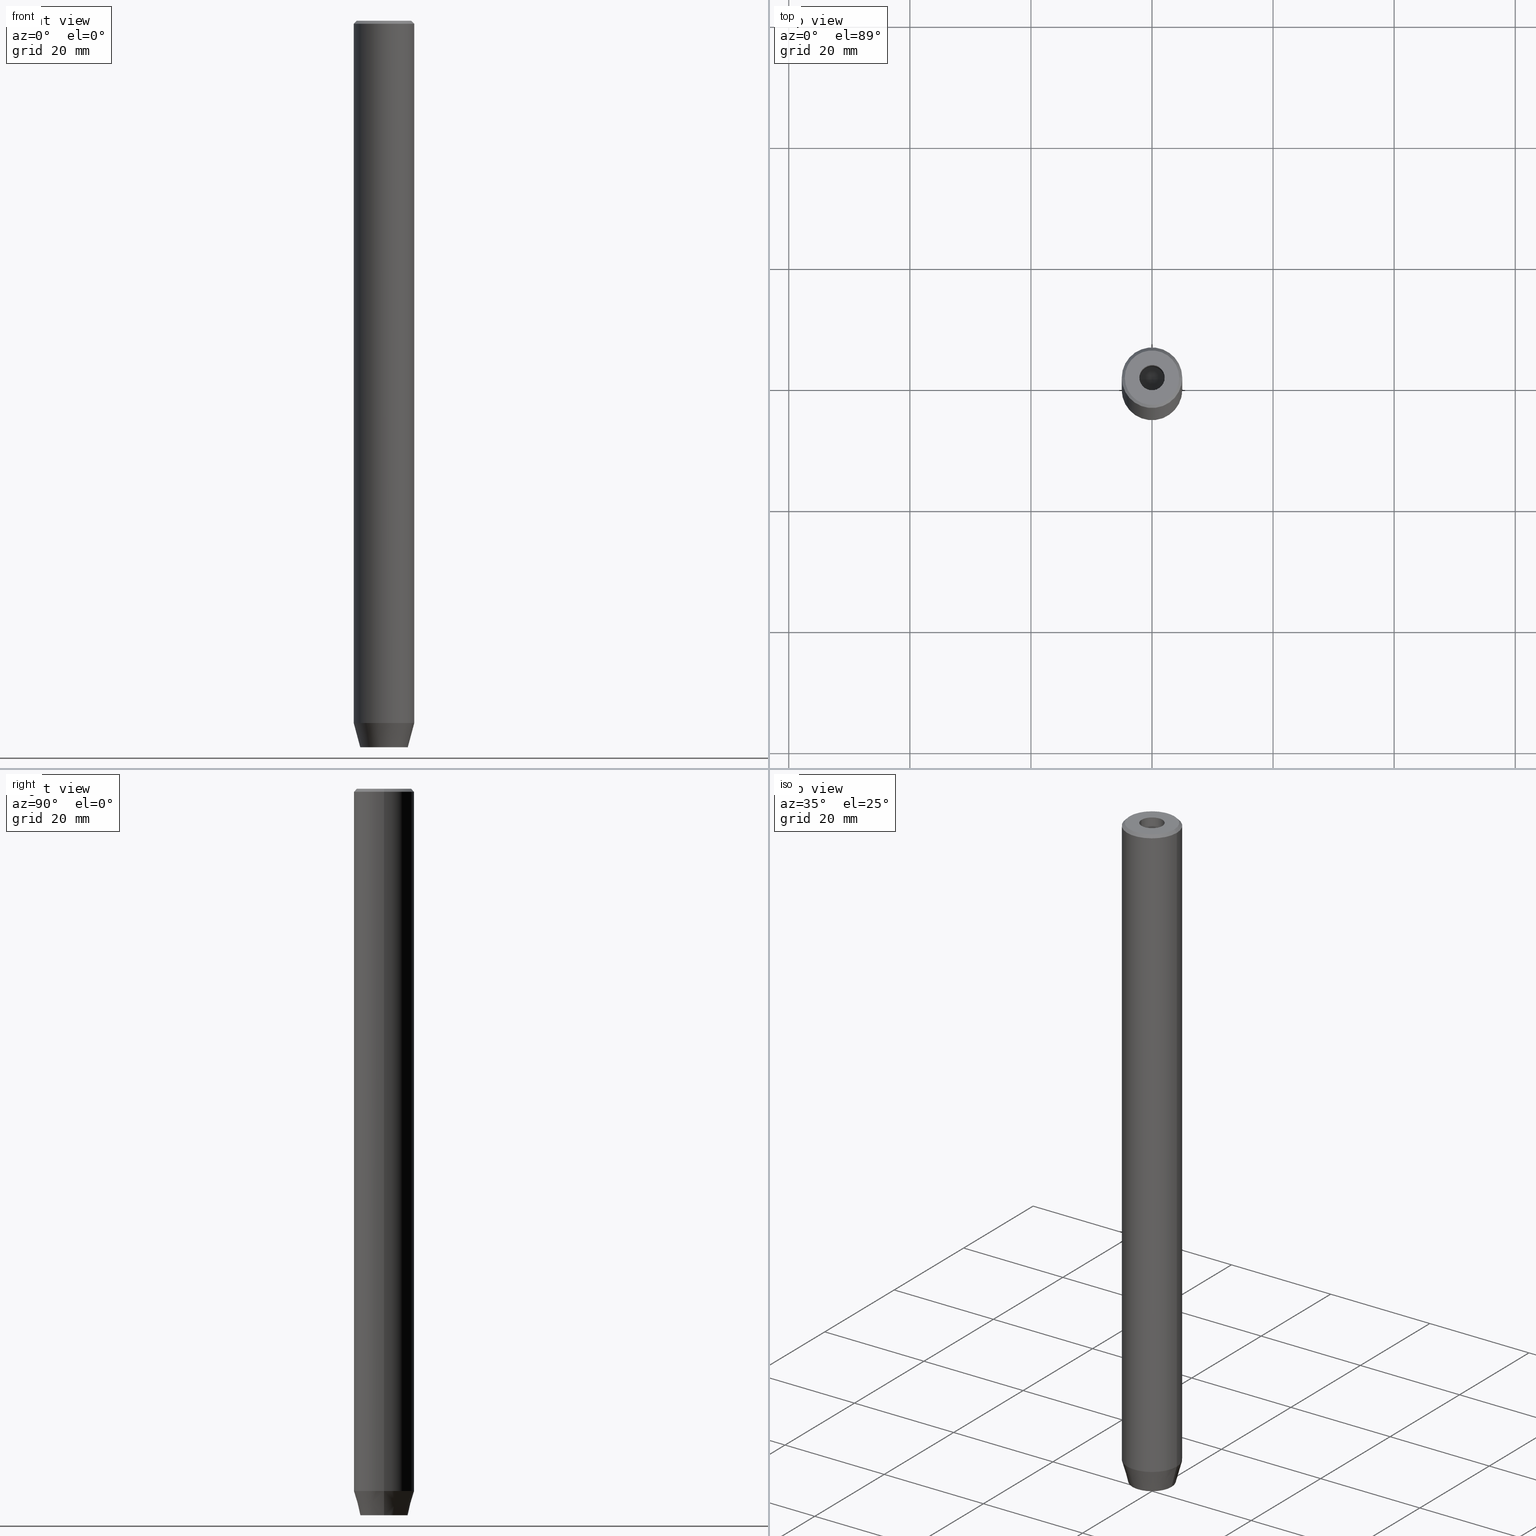
[diagram: canonical four-view strip — front | top / right | iso, engineering-drawing reading convention]
A machine part, canonical four-view strip (front | top / right | iso — engineering-drawing reading convention). The complete STEP part file that produces these views, byte-faithful:
ISO-10303-21;
HEADER;
FILE_DESCRIPTION (( 'STEP AP203' ),
    '1' );
FILE_NAME ('803f.STEP',
    '2024-01-02T21:57:26',
    ( '' ),
    ( '' ),
    'SwSTEP 2.0',
    'SolidWorks 2019',
    '' );
FILE_SCHEMA (( 'CONFIG_CONTROL_DESIGN' ));
ENDSEC;

DATA;
#1 = VERTEX_POINT ( 'NONE', #142 ) ;
#2 = CARTESIAN_POINT ( 'NONE',  ( -1.999999999999997780, 1.154700538379253238, -120.0000000000000000 ) ) ;
#3 = ORIENTED_EDGE ( 'NONE', *, *, #38, .T. ) ;
#4 = ADVANCED_FACE ( 'NONE', ( #320 ), #97, .F. ) ;
#5 = DIRECTION ( 'NONE',  ( -1.000000000000000000, 0.000000000000000000, -0.000000000000000000 ) ) ;
#6 = ORIENTED_EDGE ( 'NONE', *, *, #323, .F. ) ;
#7 = APPROVAL_ROLE ( '' ) ;
#8 = AXIS2_PLACEMENT_3D ( 'NONE', #424, #153, #566 ) ;
#9 = ORIENTED_EDGE ( 'NONE', *, *, #535, .T. ) ;
#10 = CARTESIAN_POINT ( 'NONE',  ( -1.000000000000000222, -1.732050807568877637, -120.0000000000000000 ) ) ;
#11 = ORGANIZATION ( 'NEUR�EN�', 'NEUR�EN�', '' ) ;
#12 = ORIENTED_EDGE ( 'NONE', *, *, #447, .T. ) ;
#13 = COORDINATED_UNIVERSAL_TIME_OFFSET ( 1, 0, .AHEAD. ) ;
#14 = ORIENTED_EDGE ( 'NONE', *, *, #558, .F. ) ;
#15 = EDGE_CURVE ( 'NONE', #263, #1, #193, .T. ) ;
#16 = ORIENTED_EDGE ( 'NONE', *, *, #439, .T. ) ;
#17 = DIRECTION ( 'NONE',  ( 1.000000000000000000, 0.000000000000000000, 0.000000000000000000 ) ) ;
#18 = DIRECTION ( 'NONE',  ( -1.000000000000000000, 5.633679745264339711E-16, 0.000000000000000000 ) ) ;
#19 = LINE ( 'NONE', #196, #288 ) ;
#20 = ORIENTED_EDGE ( 'NONE', *, *, #535, .F. ) ;
#21 = CIRCLE ( 'NONE', #394, 5.000000000000000000 ) ;
#22 = CARTESIAN_POINT ( 'NONE',  ( -1.999999999999998224, 1.126735949052866956E-15, -120.0000000000000000 ) ) ;
#23 = VERTEX_POINT ( 'NONE', #554 ) ;
#24 = LINE ( 'NONE', #157, #86 ) ;
#25 = ADVANCED_FACE ( 'NONE', ( #132 ), #311, .F. ) ;
#26 = DIRECTION ( 'NONE',  ( 1.000000000000000000, 0.000000000000000000, 0.000000000000000000 ) ) ;
#27 = VECTOR ( 'NONE', #395, 1000.000000000000000 ) ;
#28 = APPROVAL_PERSON_ORGANIZATION ( #357, #105, #7 ) ;
#29 = DIRECTION ( 'NONE',  ( -0.8660254037844387076, 0.5000000000000001110, 0.000000000000000000 ) ) ;
#30 = CARTESIAN_POINT ( 'NONE',  ( -1.000000000000000222, -1.732050807568877637, -117.2000000000000028 ) ) ;
#31 = DIRECTION ( 'NONE',  ( -0.000000000000000000, -0.000000000000000000, 1.000000000000000000 ) ) ;
#32 = ORIENTED_EDGE ( 'NONE', *, *, #574, .T. ) ;
#33 = EDGE_CURVE ( 'NONE', #1, #547, #409, .T. ) ;
#34 = DIRECTION ( 'NONE',  ( 0.000000000000000000, 0.000000000000000000, -1.000000000000000000 ) ) ;
#35 = VERTEX_POINT ( 'NONE', #494 ) ;
#36 = DIRECTION ( 'NONE',  ( -0.000000000000000000, -0.000000000000000000, -1.000000000000000000 ) ) ;
#37 = CYLINDRICAL_SURFACE ( 'NONE', #576, 2.099999999999997868 ) ;
#38 = EDGE_CURVE ( 'NONE', #201, #547, #530, .T. ) ;
#39 = DIRECTION ( 'NONE',  ( -0.000000000000000000, -0.000000000000000000, 1.000000000000000000 ) ) ;
#40 = CARTESIAN_POINT ( 'NONE',  ( 2.000000000000000888, 0.000000000000000000, -117.2000000000000028 ) ) ;
#41 = DIRECTION ( 'NONE',  ( -0.000000000000000000, -0.000000000000000000, -1.000000000000000000 ) ) ;
#42 = EDGE_LOOP ( 'NONE', ( #317, #228, #353, #6 ) ) ;
#43 = DIRECTION ( 'NONE',  ( 0.000000000000000000, 0.000000000000000000, -1.000000000000000000 ) ) ;
#44 = AXIS2_PLACEMENT_3D ( 'NONE', #525, #162, #337 ) ;
#45 = DIRECTION ( 'NONE',  ( 0.4999999999999996669, -0.8660254037844388186, 0.000000000000000000 ) ) ;
#46 = VECTOR ( 'NONE', #349, 1000.000000000000000 ) ;
#47 = DIRECTION ( 'NONE',  ( 0.000000000000000000, -0.000000000000000000, 1.000000000000000000 ) ) ;
#48 = DATE_TIME_ROLE ( 'creation_date' ) ;
#49 = VERTEX_POINT ( 'NONE', #2 ) ;
#50 = APPLICATION_CONTEXT ( 'configuration controlled 3d designs of mechanical parts and assemblies' ) ;
#51 = CC_DESIGN_PERSON_AND_ORGANIZATION_ASSIGNMENT ( #461, #64, ( #93 ) ) ;
#52 = CARTESIAN_POINT ( 'NONE',  ( 0.000000000000000000, 2.309401076758503812, -117.2000000000000028 ) ) ;
#53 = CALENDAR_DATE ( 2024, 2, 1 ) ;
#54 = FACE_OUTER_BOUND ( 'NONE', #198, .T. ) ;
#55 = DIRECTION ( 'NONE',  ( -0.000000000000000000, -0.000000000000000000, 1.000000000000000000 ) ) ;
#56 = COORDINATED_UNIVERSAL_TIME_OFFSET ( 1, 0, .AHEAD. ) ;
#57 = VECTOR ( 'NONE', #41, 1000.000000000000000 ) ;
#58 = CONICAL_SURFACE ( 'NONE', #175, 4.499999999999990230, 0.7853981633974447263 ) ;
#59 = MECHANICAL_CONTEXT ( 'NONE', #149, 'mechanical' ) ;
#60 = CC_DESIGN_APPROVAL ( #354, ( #298 ) ) ;
#61 = CARTESIAN_POINT ( 'NONE',  ( 2.099999999999997868, 0.000000000000000000, 0.000000000000000000 ) ) ;
#62 = EDGE_CURVE ( 'NONE', #35, #98, #249, .T. ) ;
#63 = ORIENTED_EDGE ( 'NONE', *, *, #291, .F. ) ;
#64 = PERSON_AND_ORGANIZATION_ROLE ( 'design_owner' ) ;
#65 = LINE ( 'NONE', #464, #371 ) ;
#66 = APPROVAL_DATE_TIME ( #103, #105 ) ;
#67 = CARTESIAN_POINT ( 'NONE',  ( 0.000000000000000000, 0.000000000000000000, 0.000000000000000000 ) ) ;
#68 = LINE ( 'NONE', #374, #486 ) ;
#69 = CIRCLE ( 'NONE', #214, 2.099999999999996980 ) ;
#70 = ORIENTED_EDGE ( 'NONE', *, *, #272, .T. ) ;
#71 = EDGE_CURVE ( 'NONE', #147, #411, #65, .T. ) ;
#72 = CYLINDRICAL_SURFACE ( 'NONE', #8, 5.000000000000000000 ) ;
#73 = APPROVAL_DATE_TIME ( #243, #354 ) ;
#74 = DIRECTION ( 'NONE',  ( -0.8660254037844388186, -0.4999999999999996114, 0.000000000000000000 ) ) ;
#75 = FACE_OUTER_BOUND ( 'NONE', #577, .T. ) ;
#76 = ORIENTED_EDGE ( 'NONE', *, *, #131, .F. ) ;
#77 = DIRECTION ( 'NONE',  ( -0.000000000000000000, -0.000000000000000000, 1.000000000000000000 ) ) ;
#78 = ADVANCED_FACE ( 'NONE', ( #507 ), #222, .T. ) ;
#79 = DIRECTION ( 'NONE',  ( 1.000000000000000000, 0.000000000000000000, -0.000000000000000000 ) ) ;
#80 = APPROVAL ( #237, 'NEUR�EN�' ) ;
#81 = EDGE_LOOP ( 'NONE', ( #498, #116, #90 ) ) ;
#82 = CC_DESIGN_PERSON_AND_ORGANIZATION_ASSIGNMENT ( #279, #497, ( #458 ) ) ;
#83 = LINE ( 'NONE', #216, #532 ) ;
#84 = LINE ( 'NONE', #488, #505 ) ;
#85 = CARTESIAN_POINT ( 'NONE',  ( 0.000000000000000000, 0.000000000000000000, 0.000000000000000000 ) ) ;
#86 = VECTOR ( 'NONE', #333, 1000.000000000000000 ) ;
#87 = VECTOR ( 'NONE', #327, 1000.000000000000000 ) ;
#88 = CARTESIAN_POINT ( 'NONE',  ( -1.999999999999998224, 1.126735949052866956E-15, -117.2000000000000028 ) ) ;
#89 = ORIENTED_EDGE ( 'NONE', *, *, #187, .T. ) ;
#90 = ORIENTED_EDGE ( 'NONE', *, *, #509, .T. ) ;
#91 = ADVANCED_FACE ( 'NONE', ( #75 ), #417, .T. ) ;
#92 = DIRECTION ( 'NONE',  ( 0.8660254037844388186, 0.4999999999999996669, 0.000000000000000000 ) ) ;
#93 = PRODUCT ( '803f', '803f', '', ( #59 ) ) ;
#94 = SECURITY_CLASSIFICATION_LEVEL ( 'unclassified' ) ;
#95 = CARTESIAN_POINT ( 'NONE',  ( -2.099999999999998757, 2.571758278209439985E-16, -1.990051048614449116E-16 ) ) ;
#96 = LINE ( 'NONE', #351, #568 ) ;
#97 = CYLINDRICAL_SURFACE ( 'NONE', #393, 2.099999999999997868 ) ;
#98 = VERTEX_POINT ( 'NONE', #421 ) ;
#99 = DIRECTION ( 'NONE',  ( 0.000000000000000000, 0.000000000000000000, -1.000000000000000000 ) ) ;
#100 = EDGE_CURVE ( 'NONE', #98, #345, #19, .T. ) ;
#101 = CARTESIAN_POINT ( 'NONE',  ( 0.000000000000000000, 0.000000000000000000, -117.2000000000000028 ) ) ;
#102 = EDGE_LOOP ( 'NONE', ( #89, #350, #179, #514 ) ) ;
#103 = DATE_AND_TIME ( #234, #295 ) ;
#104 = AXIS2_PLACEMENT_3D ( 'NONE', #167, #340, #343 ) ;
#105 = APPROVAL ( #504, 'NEUR�EN�' ) ;
#106 = EDGE_LOOP ( 'NONE', ( #309, #76, #14, #567, #280, #414 ) ) ;
#107 = PLANE ( 'NONE',  #268 ) ;
#108 = EDGE_CURVE ( 'NONE', #147, #496, #386, .T. ) ;
#109 = AXIS2_PLACEMENT_3D ( 'NONE', #258, #31, #581 ) ;
#110 = DIRECTION ( 'NONE',  ( -0.000000000000000000, -0.000000000000000000, 1.000000000000000000 ) ) ;
#111 = APPROVAL_STATUS ( 'not_yet_approved' ) ;
#112 = PERSON_AND_ORGANIZATION_ROLE ( 'creator' ) ;
#113 = ADVANCED_FACE ( 'NONE', ( #469 ), #72, .T. ) ;
#114 = CARTESIAN_POINT ( 'NONE',  ( -1.999999999999998668, -1.154700538379252572, -117.2000000000000028 ) ) ;
#115 = PLANE ( 'NONE',  #522 ) ;
#116 = ORIENTED_EDGE ( 'NONE', *, *, #238, .T. ) ;
#117 = AXIS2_PLACEMENT_3D ( 'NONE', #396, #587, #451 ) ;
#118 = AXIS2_PLACEMENT_3D ( 'NONE', #385, #346, #301 ) ;
#119 = FACE_BOUND ( 'NONE', #106, .T. ) ;
#120 = EDGE_LOOP ( 'NONE', ( #466, #520, #274, #158 ) ) ;
#121 = DIRECTION ( 'NONE',  ( -0.000000000000000000, 0.000000000000000000, -1.000000000000000000 ) ) ;
#122 = CARTESIAN_POINT ( 'NONE',  ( -5.000000000000000000, 6.123233995736766282E-16, -0.5000000000000135447 ) ) ;
#123 = CARTESIAN_POINT ( 'NONE',  ( 2.000000000000000888, 1.154700538379251462, -117.2000000000000028 ) ) ;
#124 = EDGE_CURVE ( 'NONE', #422, #136, #287, .T. ) ;
#125 = FACE_OUTER_BOUND ( 'NONE', #415, .T. ) ;
#126 = AXIS2_PLACEMENT_3D ( 'NONE', #355, #135, #540 ) ;
#127 = LINE ( 'NONE', #52, #557 ) ;
#128 = ORIENTED_EDGE ( 'NONE', *, *, #366, .T. ) ;
#129 =( LENGTH_UNIT ( ) NAMED_UNIT ( * ) SI_UNIT ( .MILLI., .METRE. ) );
#130 = FACE_BOUND ( 'NONE', #468, .T. ) ;
#131 = EDGE_CURVE ( 'NONE', #170, #49, #248, .T. ) ;
#132 = FACE_OUTER_BOUND ( 'NONE', #362, .T. ) ;
#133 = AXIS2_PLACEMENT_3D ( 'NONE', #171, #435, #307 ) ;
#134 = PERSON_AND_ORGANIZATION ( #299, #11 ) ;
#135 = DIRECTION ( 'NONE',  ( -0.000000000000000000, -0.000000000000000000, 1.000000000000000000 ) ) ;
#136 = VERTEX_POINT ( 'NONE', #329 ) ;
#137 = DATE_AND_TIME ( #402, #506 ) ;
#138 = EDGE_CURVE ( 'NONE', #411, #161, #303, .T. ) ;
#139 = ORIENTED_EDGE ( 'NONE', *, *, #366, .F. ) ;
#140 = DIRECTION ( 'NONE',  ( -0.000000000000000000, -0.000000000000000000, 1.000000000000000000 ) ) ;
#141 = LINE ( 'NONE', #459, #294 ) ;
#142 = CARTESIAN_POINT ( 'NONE',  ( -2.099999999999996980, 2.571758278209438013E-16, -15.00000000000000000 ) ) ;
#143 = DATE_AND_TIME ( #251, #406 ) ;
#144 = AXIS2_PLACEMENT_3D ( 'NONE', #455, #45, #92 ) ;
#145 = PERSON_AND_ORGANIZATION ( #299, #11 ) ;
#146 = VECTOR ( 'NONE', #573, 1000.000000000000000 ) ;
#147 = VERTEX_POINT ( 'NONE', #302 ) ;
#148 = LINE ( 'NONE', #10, #534 ) ;
#149 = APPLICATION_CONTEXT ( 'configuration controlled 3d designs of mechanical parts and assemblies' ) ;
#150 = DIRECTION ( 'NONE',  ( 0.2588190451025210725, 0.000000000000000000, 0.9659258262890680902 ) ) ;
#151 = ORIENTED_EDGE ( 'NONE', *, *, #177, .F. ) ;
#152 = EDGE_CURVE ( 'NONE', #543, #256, #84, .T. ) ;
#153 = DIRECTION ( 'NONE',  ( -0.000000000000000000, -0.000000000000000000, 1.000000000000000000 ) ) ;
#154 = ORIENTED_EDGE ( 'NONE', *, *, #38, .F. ) ;
#155 = EDGE_LOOP ( 'NONE', ( #210, #185, #551 ) ) ;
#156 = AXIS2_PLACEMENT_3D ( 'NONE', #192, #463, #553 ) ;
#157 = CARTESIAN_POINT ( 'NONE',  ( -1.999999999999997780, 1.154700538379253238, -117.2000000000000028 ) ) ;
#158 = ORIENTED_EDGE ( 'NONE', *, *, #439, .F. ) ;
#159 = EDGE_CURVE ( 'NONE', #136, #254, #441, .T. ) ;
#160 = CARTESIAN_POINT ( 'NONE',  ( 2.000000000000000888, -1.154700538379252572, -117.2000000000000028 ) ) ;
#161 = VERTEX_POINT ( 'NONE', #122 ) ;
#162 = DIRECTION ( 'NONE',  ( -0.000000000000000000, -0.000000000000000000, 1.000000000000000000 ) ) ;
#163 = FACE_OUTER_BOUND ( 'NONE', #384, .T. ) ;
#164 = CALENDAR_DATE ( 2024, 2, 1 ) ;
#165 = PLANE ( 'NONE',  #133 ) ;
#166 = ORIENTED_EDGE ( 'NONE', *, *, #526, .T. ) ;
#167 = CARTESIAN_POINT ( 'NONE',  ( 0.000000000000000000, 0.000000000000000000, 0.000000000000000000 ) ) ;
#168 = DIRECTION ( 'NONE',  ( 1.000000000000000000, 0.000000000000000000, 0.000000000000000000 ) ) ;
#169 = ADVANCED_FACE ( 'NONE', ( #163 ), #115, .F. ) ;
#170 = VERTEX_POINT ( 'NONE', #433 ) ;
#171 = CARTESIAN_POINT ( 'NONE',  ( 1.000000000000000444, 1.732050807568877637, -117.2000000000000028 ) ) ;
#172 = DIRECTION ( 'NONE',  ( 1.000000000000000000, 0.000000000000000000, 0.000000000000000000 ) ) ;
#173 = ORIENTED_EDGE ( 'NONE', *, *, #509, .F. ) ;
#174 = AXIS2_PLACEMENT_3D ( 'NONE', #510, #244, #26 ) ;
#175 = AXIS2_PLACEMENT_3D ( 'NONE', #67, #99, #367 ) ;
#176 = CARTESIAN_POINT ( 'NONE',  ( 0.000000000000000000, 0.000000000000000000, 0.000000000000000000 ) ) ;
#177 = EDGE_CURVE ( 'NONE', #547, #201, #324, .T. ) ;
#178 = CARTESIAN_POINT ( 'NONE',  ( -3.982994051648894933E-15, 0.000000000000000000, -16.26180729995787644 ) ) ;
#179 = ORIENTED_EDGE ( 'NONE', *, *, #336, .F. ) ;
#180 = FACE_OUTER_BOUND ( 'NONE', #397, .T. ) ;
#181 = ORIENTED_EDGE ( 'NONE', *, *, #501, .F. ) ;
#182 = CARTESIAN_POINT ( 'NONE',  ( 2.168404344971008868E-16, -2.309401076758503812, -120.0000000000000000 ) ) ;
#183 = VECTOR ( 'NONE', #428, 1000.000000000000000 ) ;
#184 = ORIENTED_EDGE ( 'NONE', *, *, #305, .T. ) ;
#185 = ORIENTED_EDGE ( 'NONE', *, *, #15, .T. ) ;
#186 = CARTESIAN_POINT ( 'NONE',  ( 0.000000000000000000, 2.309401076758503812, -117.2000000000000028 ) ) ;
#187 = EDGE_CURVE ( 'NONE', #98, #35, #359, .T. ) ;
#188 = ORIENTED_EDGE ( 'NONE', *, *, #62, .F. ) ;
#189 = PERSON_AND_ORGANIZATION_ROLE ( 'classification_officer' ) ;
#190 = ORIENTED_EDGE ( 'NONE', *, *, #501, .T. ) ;
#191 = DIRECTION ( 'NONE',  ( 1.000000000000000000, 0.000000000000000000, 0.000000000000000000 ) ) ;
#192 = CARTESIAN_POINT ( 'NONE',  ( 0.000000000000000000, 0.000000000000000000, -15.00000000000000000 ) ) ;
#193 = LINE ( 'NONE', #503, #205 ) ;
#194 = ORIENTED_EDGE ( 'NONE', *, *, #131, .T. ) ;
#195 = DIRECTION ( 'NONE',  ( 1.000000000000000000, 0.000000000000000000, 0.000000000000000000 ) ) ;
#196 = CARTESIAN_POINT ( 'NONE',  ( 5.000000000000000000, 0.000000000000000000, -115.9999999999999858 ) ) ;
#197 = AXIS2_PLACEMENT_3D ( 'NONE', #563, #110, #559 ) ;
#198 = EDGE_LOOP ( 'NONE', ( #194, #63, #20, #32 ) ) ;
#199 = CARTESIAN_POINT ( 'NONE',  ( -4.499999999999990230, 0.000000000000000000, 0.000000000000000000 ) ) ;
#200 = ADVANCED_FACE ( 'NONE', ( #344 ), #475, .F. ) ;
#201 = VERTEX_POINT ( 'NONE', #531 ) ;
#202 = ORIENTED_EDGE ( 'NONE', *, *, #138, .T. ) ;
#203 = DIRECTION ( 'NONE',  ( 0.7071067811865450192, 8.659560562354902043E-17, -0.7071067811865500152 ) ) ;
#204 = EDGE_CURVE ( 'NONE', #579, #543, #127, .T. ) ;
#205 = VECTOR ( 'NONE', #278, 1000.000000000000000 ) ;
#206 = VECTOR ( 'NONE', #77, 1000.000000000000000 ) ;
#207 = APPROVAL_PERSON_ORGANIZATION ( #410, #80, #227 ) ;
#208 = CARTESIAN_POINT ( 'NONE',  ( -5.000000000000000000, 6.123233995736766282E-16, 0.000000000000000000 ) ) ;
#209 = CC_DESIGN_PERSON_AND_ORGANIZATION_ASSIGNMENT ( #431, #112, ( #298 ) ) ;
#210 = ORIENTED_EDGE ( 'NONE', *, *, #238, .F. ) ;
#211 = CARTESIAN_POINT ( 'NONE',  ( -4.499999999999990230, 0.000000000000000000, 0.000000000000000000 ) ) ;
#212 = DIRECTION ( 'NONE',  ( -0.8660254037844385966, -0.5000000000000001110, 0.000000000000000000 ) ) ;
#213 = DIRECTION ( 'NONE',  ( -0.000000000000000000, -0.000000000000000000, 1.000000000000000000 ) ) ;
#214 = AXIS2_PLACEMENT_3D ( 'NONE', #219, #500, #195 ) ;
#215 = ADVANCED_FACE ( 'NONE', ( #130, #316 ), #502, .T. ) ;
#216 = CARTESIAN_POINT ( 'NONE',  ( 2.000000000000000888, 0.000000000000000000, -120.0000000000000000 ) ) ;
#217 = CARTESIAN_POINT ( 'NONE',  ( 0.000000000000000000, 0.000000000000000000, 0.000000000000000000 ) ) ;
#218 = DIRECTION ( 'NONE',  ( -0.000000000000000000, -0.000000000000000000, 1.000000000000000000 ) ) ;
#219 = CARTESIAN_POINT ( 'NONE',  ( 0.000000000000000000, 0.000000000000000000, -15.00000000000000000 ) ) ;
#220 = CARTESIAN_POINT ( 'NONE',  ( 2.168404344971008868E-16, -2.309401076758503812, -117.2000000000000028 ) ) ;
#221 = ADVANCED_FACE ( 'NONE', ( #399 ), #361, .T. ) ;
#222 = CONICAL_SURFACE ( 'NONE', #449, 5.000000000000000000, 0.2617993877991497964 ) ;
#223 = LINE ( 'NONE', #584, #27 ) ;
#224 = PRODUCT_RELATED_PRODUCT_CATEGORY ( 'detail', '', ( #93 ) ) ;
#225 = DATE_AND_TIME ( #53, #387 ) ;
#226 = ORIENTED_EDGE ( 'NONE', *, *, #257, .T. ) ;
#227 = APPROVAL_ROLE ( '' ) ;
#228 = ORIENTED_EDGE ( 'NONE', *, *, #398, .T. ) ;
#229 = CARTESIAN_POINT ( 'NONE',  ( 0.000000000000000000, 0.000000000000000000, 0.000000000000000000 ) ) ;
#230 = CLOSED_SHELL ( 'NONE', ( #491, #314, #546, #78, #113, #470, #215, #91, #265, #483, #169, #282, #331, #25, #382, #376, #221, #200, #4 ) ) ;
#231 = CARTESIAN_POINT ( 'NONE',  ( 2.000000000000000888, 1.154700538379251462, -120.0000000000000000 ) ) ;
#232 = CIRCLE ( 'NONE', #306, 5.000000000000000000 ) ;
#233 = DIRECTION ( 'NONE',  ( -0.000000000000000000, -0.000000000000000000, 1.000000000000000000 ) ) ;
#234 = CALENDAR_DATE ( 2024, 2, 1 ) ;
#235 = APPLICATION_PROTOCOL_DEFINITION ( 'international standard', 'config_control_design', 1994, #50 ) ;
#236 = DIRECTION ( 'NONE',  ( 1.000000000000000000, 0.000000000000000000, 0.000000000000000000 ) ) ;
#237 = APPROVAL_STATUS ( 'not_yet_approved' ) ;
#238 = EDGE_CURVE ( 'NONE', #263, #239, #141, .T. ) ;
#239 = VERTEX_POINT ( 'NONE', #493 ) ;
#240 = LINE ( 'NONE', #412, #46 ) ;
#241 = AXIS2_PLACEMENT_3D ( 'NONE', #85, #34, #575 ) ;
#242 = VERTEX_POINT ( 'NONE', #492 ) ;
#243 = DATE_AND_TIME ( #164, #260 ) ;
#244 = DIRECTION ( 'NONE',  ( -0.000000000000000000, -0.000000000000000000, 1.000000000000000000 ) ) ;
#245 = EDGE_CURVE ( 'NONE', #239, #201, #454, .T. ) ;
#246 = CARTESIAN_POINT ( 'NONE',  ( 0.9999999999999997780, -1.732050807568878747, -117.2000000000000028 ) ) ;
#247 = ORIENTED_EDGE ( 'NONE', *, *, #558, .T. ) ;
#248 = LINE ( 'NONE', #22, #183 ) ;
#249 = CIRCLE ( 'NONE', #555, 3.928203230275506996 ) ;
#250 = AXIS2_PLACEMENT_3D ( 'NONE', #479, #39, #482 ) ;
#251 = CALENDAR_DATE ( 2024, 2, 1 ) ;
#252 = CARTESIAN_POINT ( 'NONE',  ( 2.000000000000000888, 1.154700538379251462, -117.2000000000000028 ) ) ;
#253 = DIRECTION ( 'NONE',  ( -0.5000000000000001110, 0.8660254037844385966, 0.000000000000000000 ) ) ;
#254 = VERTEX_POINT ( 'NONE', #182 ) ;
#255 = PLANE ( 'NONE',  #118 ) ;
#256 = VERTEX_POINT ( 'NONE', #231 ) ;
#257 = EDGE_CURVE ( 'NONE', #283, #579, #223, .T. ) ;
#258 = CARTESIAN_POINT ( 'NONE',  ( 0.000000000000000000, 0.000000000000000000, -120.0000000000000000 ) ) ;
#259 = CONICAL_SURFACE ( 'NONE', #126, 5.000000000000000000, 0.2617993877991497964 ) ;
#260 = LOCAL_TIME ( 22, 57, 26.00000000000000000, #565 ) ;
#261 = LINE ( 'NONE', #123, #146 ) ;
#262 = CARTESIAN_POINT ( 'NONE',  ( 0.000000000000000000, 0.000000000000000000, -15.00000000000000000 ) ) ;
#263 = VERTEX_POINT ( 'NONE', #178 ) ;
#264 = CARTESIAN_POINT ( 'NONE',  ( 0.000000000000000000, 0.000000000000000000, -15.00000000000000000 ) ) ;
#265 = ADVANCED_FACE ( 'NONE', ( #180 ), #259, .T. ) ;
#266 = ORIENTED_EDGE ( 'NONE', *, *, #159, .T. ) ;
#267 = CC_DESIGN_PERSON_AND_ORGANIZATION_ASSIGNMENT ( #145, #318, ( #458 ) ) ;
#268 = AXIS2_PLACEMENT_3D ( 'NONE', #286, #437, #293 ) ;
#269 = DIRECTION ( 'NONE',  ( -0.000000000000000000, -0.000000000000000000, 1.000000000000000000 ) ) ;
#270 = ORIENTED_EDGE ( 'NONE', *, *, #398, .F. ) ;
#271 = APPROVAL_DATE_TIME ( #137, #80 ) ;
#272 = EDGE_CURVE ( 'NONE', #579, #436, #96, .T. ) ;
#273 = ORIENTED_EDGE ( 'NONE', *, *, #429, .T. ) ;
#274 = ORIENTED_EDGE ( 'NONE', *, *, #423, .F. ) ;
#275 = DIRECTION ( 'NONE',  ( -0.8660254037844387076, 0.5000000000000001110, 0.000000000000000000 ) ) ;
#276 = AXIS2_PLACEMENT_3D ( 'NONE', #101, #43, #5 ) ;
#277 = CC_DESIGN_SECURITY_CLASSIFICATION ( #586, ( #458 ) ) ;
#278 = DIRECTION ( 'NONE',  ( -0.8571673007021113344, 1.049727191138617463E-16, 0.5150380749100558209 ) ) ;
#279 = PERSON_AND_ORGANIZATION ( #299, #11 ) ;
#280 = ORIENTED_EDGE ( 'NONE', *, *, #408, .F. ) ;
#281 = DIRECTION ( 'NONE',  ( 0.000000000000000000, 0.000000000000000000, 1.000000000000000000 ) ) ;
#282 = ADVANCED_FACE ( 'NONE', ( #54 ), #319, .F. ) ;
#283 = VERTEX_POINT ( 'NONE', #285 ) ;
#284 = LINE ( 'NONE', #322, #523 ) ;
#285 = CARTESIAN_POINT ( 'NONE',  ( -1.999999999999997780, 1.154700538379253238, -117.2000000000000028 ) ) ;
#286 = CARTESIAN_POINT ( 'NONE',  ( -1.000000000000000222, -1.732050807568877637, -117.2000000000000028 ) ) ;
#287 = LINE ( 'NONE', #246, #569 ) ;
#288 = VECTOR ( 'NONE', #150, 1000.000000000000114 ) ;
#289 = DIRECTION ( 'NONE',  ( -0.8660254037844388186, -0.4999999999999996114, 0.000000000000000000 ) ) ;
#290 = ORIENTED_EDGE ( 'NONE', *, *, #33, .F. ) ;
#291 = EDGE_CURVE ( 'NONE', #283, #49, #24, .T. ) ;
#292 = COORDINATED_UNIVERSAL_TIME_OFFSET ( 1, 0, .AHEAD. ) ;
#293 = DIRECTION ( 'NONE',  ( 0.8660254037844385966, -0.4999999999999999445, 0.000000000000000000 ) ) ;
#294 = VECTOR ( 'NONE', #310, 1000.000000000000000 ) ;
#295 = LOCAL_TIME ( 22, 57, 26.00000000000000000, #56 ) ;
#296 = CARTESIAN_POINT ( 'NONE',  ( 0.000000000000000000, 0.000000000000000000, -0.5000000000000135447 ) ) ;
#297 = DIRECTION ( 'NONE',  ( 0.8660254037844385966, -0.5000000000000001110, 0.000000000000000000 ) ) ;
#298 = PRODUCT_DEFINITION ( 'NEZN�M�', '', #458, #304 ) ;
#299 = PERSON ( 'NEUR�EN�', 'NEUR�EN�', 'NEUR�EN�', ('NEUR�EN�'), ('NEUR�EN�'), ('NEUR�EN�') ) ;
#300 = LINE ( 'NONE', #580, #419 ) ;
#301 = DIRECTION ( 'NONE',  ( -1.000000000000000000, 0.000000000000000000, -0.000000000000000000 ) ) ;
#302 = CARTESIAN_POINT ( 'NONE',  ( 4.499999999999990230, 5.817072295949921509E-16, 0.000000000000000000 ) ) ;
#303 = CIRCLE ( 'NONE', #542, 5.000000000000000000 ) ;
#304 = DESIGN_CONTEXT ( 'detailed design', #50, 'design' ) ;
#305 = EDGE_CURVE ( 'NONE', #242, #254, #517, .T. ) ;
#306 = AXIS2_PLACEMENT_3D ( 'NONE', #474, #213, #389 ) ;
#307 = DIRECTION ( 'NONE',  ( -0.8660254037844385966, 0.5000000000000001110, 0.000000000000000000 ) ) ;
#308 =( NAMED_UNIT ( * ) PLANE_ANGLE_UNIT ( ) SI_UNIT ( $, .RADIAN. ) );
#309 = ORIENTED_EDGE ( 'NONE', *, *, #526, .F. ) ;
#310 = DIRECTION ( 'NONE',  ( 0.8571673007021113344, 0.000000000000000000, 0.5150380749100558209 ) ) ;
#311 = PLANE ( 'NONE',  #144 ) ;
#312 = VECTOR ( 'NONE', #416, 1000.000000000000000 ) ;
#313 = AXIS2_PLACEMENT_3D ( 'NONE', #264, #140, #191 ) ;
#314 = ADVANCED_FACE ( 'NONE', ( #368 ), #405, .F. ) ;
#315 = ORIENTED_EDGE ( 'NONE', *, *, #124, .T. ) ;
#316 = FACE_OUTER_BOUND ( 'NONE', #401, .T. ) ;
#317 = ORIENTED_EDGE ( 'NONE', *, *, #336, .T. ) ;
#318 = PERSON_AND_ORGANIZATION_ROLE ( 'creator' ) ;
#319 = PLANE ( 'NONE',  #330 ) ;
#320 = FACE_OUTER_BOUND ( 'NONE', #508, .T. ) ;
#321 = COORDINATED_UNIVERSAL_TIME_OFFSET ( 1, 0, .AHEAD. ) ;
#322 = CARTESIAN_POINT ( 'NONE',  ( -1.000000000000000444, 1.732050807568877637, -120.0000000000000000 ) ) ;
#323 = EDGE_CURVE ( 'NONE', #345, #411, #68, .T. ) ;
#324 = CIRCLE ( 'NONE', #250, 2.099999999999998757 ) ;
#325 = ORIENTED_EDGE ( 'NONE', *, *, #408, .T. ) ;
#326 = CARTESIAN_POINT ( 'NONE',  ( -1.999999999999998224, 1.126735949052866956E-15, -117.2000000000000028 ) ) ;
#327 = DIRECTION ( 'NONE',  ( 5.633679745264339711E-16, 1.000000000000000000, 0.000000000000000000 ) ) ;
#328 = ORIENTED_EDGE ( 'NONE', *, *, #177, .T. ) ;
#329 = CARTESIAN_POINT ( 'NONE',  ( 2.168404344971008868E-16, -2.309401076758503812, -117.2000000000000028 ) ) ;
#330 = AXIS2_PLACEMENT_3D ( 'NONE', #326, #18, #413 ) ;
#331 = ADVANCED_FACE ( 'NONE', ( #511 ), #107, .F. ) ;
#332 = AXIS2_PLACEMENT_3D ( 'NONE', #229, #281, #404 ) ;
#333 = DIRECTION ( 'NONE',  ( -0.000000000000000000, -0.000000000000000000, -1.000000000000000000 ) ) ;
#334 = ORIENTED_EDGE ( 'NONE', *, *, #582, .F. ) ;
#335 = ORIENTED_EDGE ( 'NONE', *, *, #71, .F. ) ;
#336 = EDGE_CURVE ( 'NONE', #345, #23, #232, .T. ) ;
#337 = DIRECTION ( 'NONE',  ( 1.000000000000000000, 0.000000000000000000, 0.000000000000000000 ) ) ;
#338 = ORIENTED_EDGE ( 'NONE', *, *, #204, .T. ) ;
#339 = CIRCLE ( 'NONE', #44, 5.000000000000000000 ) ;
#340 = DIRECTION ( 'NONE',  ( -0.000000000000000000, -0.000000000000000000, 1.000000000000000000 ) ) ;
#341 = CC_DESIGN_DATE_AND_TIME_ASSIGNMENT ( #225, #400, ( #586 ) ) ;
#342 = DIRECTION ( 'NONE',  ( 0.000000000000000000, 0.000000000000000000, -1.000000000000000000 ) ) ;
#343 = DIRECTION ( 'NONE',  ( 1.000000000000000000, 0.000000000000000000, 0.000000000000000000 ) ) ;
#344 = FACE_OUTER_BOUND ( 'NONE', #81, .T. ) ;
#345 = VERTEX_POINT ( 'NONE', #529 ) ;
#346 = DIRECTION ( 'NONE',  ( 0.000000000000000000, 0.000000000000000000, -1.000000000000000000 ) ) ;
#347 = ORIENTED_EDGE ( 'NONE', *, *, #272, .F. ) ;
#348 = CIRCLE ( 'NONE', #104, 4.499999999999990230 ) ;
#349 = DIRECTION ( 'NONE',  ( -0.000000000000000000, -0.000000000000000000, -1.000000000000000000 ) ) ;
#350 = ORIENTED_EDGE ( 'NONE', *, *, #516, .T. ) ;
#351 = CARTESIAN_POINT ( 'NONE',  ( 1.000000000000000444, 1.732050807568877637, -117.2000000000000028 ) ) ;
#352 = ORIENTED_EDGE ( 'NONE', *, *, #390, .F. ) ;
#353 = ORIENTED_EDGE ( 'NONE', *, *, #423, .T. ) ;
#354 = APPROVAL ( #111, 'NEUR�EN�' ) ;
#355 = CARTESIAN_POINT ( 'NONE',  ( 0.000000000000000000, 0.000000000000000000, -115.9999999999999858 ) ) ;
#356 = CARTESIAN_POINT ( 'NONE',  ( 0.000000000000000000, 0.000000000000000000, -120.0000000000000000 ) ) ;
#357 = PERSON_AND_ORGANIZATION ( #299, #11 ) ;
#358 = ORIENTED_EDGE ( 'NONE', *, *, #138, .F. ) ;
#359 = CIRCLE ( 'NONE', #109, 3.928203230275506996 ) ;
#360 =( GEOMETRIC_REPRESENTATION_CONTEXT ( 3 ) GLOBAL_UNCERTAINTY_ASSIGNED_CONTEXT ( ( #443 ) ) GLOBAL_UNIT_ASSIGNED_CONTEXT ( ( #129, #308, #444 ) ) REPRESENTATION_CONTEXT ( 'NONE', 'WORKASPACE' ) );
#361 = PLANE ( 'NONE',  #276 ) ;
#362 = EDGE_LOOP ( 'NONE', ( #184, #564, #369, #128 ) ) ;
#363 = EDGE_LOOP ( 'NONE', ( #335, #445, #16, #358 ) ) ;
#364 = CARTESIAN_POINT ( 'NONE',  ( -5.000000000000000000, 6.123233995736766282E-16, -115.9999999999999858 ) ) ;
#365 = EDGE_LOOP ( 'NONE', ( #325, #139, #181, #12 ) ) ;
#366 = EDGE_CURVE ( 'NONE', #422, #242, #300, .T. ) ;
#367 = DIRECTION ( 'NONE',  ( -1.000000000000000000, 0.000000000000000000, 0.000000000000000000 ) ) ;
#368 = FACE_OUTER_BOUND ( 'NONE', #155, .T. ) ;
#369 = ORIENTED_EDGE ( 'NONE', *, *, #124, .F. ) ;
#370 = DIRECTION ( 'NONE',  ( -0.000000000000000000, -0.000000000000000000, 1.000000000000000000 ) ) ;
#371 = VECTOR ( 'NONE', #203, 1000.000000000000000 ) ;
#372 = CC_DESIGN_APPROVAL ( #80, ( #586 ) ) ;
#373 = ORIENTED_EDGE ( 'NONE', *, *, #108, .T. ) ;
#374 = CARTESIAN_POINT ( 'NONE',  ( 5.000000000000000000, 0.000000000000000000, 0.000000000000000000 ) ) ;
#375 = ORIENTED_EDGE ( 'NONE', *, *, #245, .F. ) ;
#376 = ADVANCED_FACE ( 'NONE', ( #125 ), #165, .F. ) ;
#377 = DIRECTION ( 'NONE',  ( 1.000000000000000000, 0.000000000000000000, 0.000000000000000000 ) ) ;
#378 = ORIENTED_EDGE ( 'NONE', *, *, #245, .T. ) ;
#379 = VECTOR ( 'NONE', #233, 1000.000000000000000 ) ;
#380 = DIRECTION ( 'NONE',  ( 0.000000000000000000, -1.000000000000000000, 0.000000000000000000 ) ) ;
#381 = ORIENTED_EDGE ( 'NONE', *, *, #204, .F. ) ;
#382 = ADVANCED_FACE ( 'NONE', ( #487 ), #425, .F. ) ;
#383 = DIRECTION ( 'NONE',  ( -0.7071067811865450192, 0.000000000000000000, -0.7071067811865500152 ) ) ;
#384 = EDGE_LOOP ( 'NONE', ( #166, #381, #533, #570 ) ) ;
#385 = CARTESIAN_POINT ( 'NONE',  ( 0.000000000000000000, 3.928203230275506996, -120.0000000000000000 ) ) ;
#386 = CIRCLE ( 'NONE', #174, 4.499999999999990230 ) ;
#387 = LOCAL_TIME ( 22, 57, 26.00000000000000000, #13 ) ;
#388 = CARTESIAN_POINT ( 'NONE',  ( 5.000000000000000000, 0.000000000000000000, -0.5000000000000135447 ) ) ;
#389 = DIRECTION ( 'NONE',  ( 1.000000000000000000, 0.000000000000000000, 0.000000000000000000 ) ) ;
#390 = EDGE_CURVE ( 'NONE', #136, #430, #432, .T. ) ;
#391 = LINE ( 'NONE', #40, #312 ) ;
#392 = ORIENTED_EDGE ( 'NONE', *, *, #465, .T. ) ;
#393 = AXIS2_PLACEMENT_3D ( 'NONE', #538, #499, #448 ) ;
#394 = AXIS2_PLACEMENT_3D ( 'NONE', #296, #481, #518 ) ;
#395 = DIRECTION ( 'NONE',  ( 0.8660254037844385966, 0.5000000000000001110, 0.000000000000000000 ) ) ;
#396 = CARTESIAN_POINT ( 'NONE',  ( 0.000000000000000000, 0.000000000000000000, -1.990051048614449116E-16 ) ) ;
#397 = EDGE_LOOP ( 'NONE', ( #485, #418, #537, #462 ) ) ;
#398 = EDGE_CURVE ( 'NONE', #23, #161, #571, .T. ) ;
#399 = FACE_OUTER_BOUND ( 'NONE', #477, .T. ) ;
#400 = DATE_TIME_ROLE ( 'classification_date' ) ;
#401 = EDGE_LOOP ( 'NONE', ( #273, #373 ) ) ;
#402 = CALENDAR_DATE ( 2024, 2, 1 ) ;
#403 = ORIENTED_EDGE ( 'NONE', *, *, #574, .F. ) ;
#404 = DIRECTION ( 'NONE',  ( 1.000000000000000000, 0.000000000000000000, 0.000000000000000000 ) ) ;
#405 = CONICAL_SURFACE ( 'NONE', #156, 2.099999999999996980, 1.029744258676652535 ) ;
#406 = LOCAL_TIME ( 22, 57, 26.00000000000000000, #292 ) ;
#407 = DIRECTION ( 'NONE',  ( 0.8660254037844385966, -0.5000000000000001110, 0.000000000000000000 ) ) ;
#408 = EDGE_CURVE ( 'NONE', #256, #242, #83, .T. ) ;
#409 = LINE ( 'NONE', #541, #426 ) ;
#410 = PERSON_AND_ORGANIZATION ( #299, #11 ) ;
#411 = VERTEX_POINT ( 'NONE', #388 ) ;
#412 = CARTESIAN_POINT ( 'NONE',  ( -1.999999999999998668, -1.154700538379252572, -117.2000000000000028 ) ) ;
#413 = DIRECTION ( 'NONE',  ( -5.633679745264339711E-16, -1.000000000000000000, 0.000000000000000000 ) ) ;
#414 = ORIENTED_EDGE ( 'NONE', *, *, #152, .F. ) ;
#415 = EDGE_LOOP ( 'NONE', ( #452, #524, #347, #338 ) ) ;
#416 = DIRECTION ( 'NONE',  ( 0.000000000000000000, -1.000000000000000000, 0.000000000000000000 ) ) ;
#417 = CYLINDRICAL_SURFACE ( 'NONE', #197, 5.000000000000000000 ) ;
#418 = ORIENTED_EDGE ( 'NONE', *, *, #62, .T. ) ;
#419 = VECTOR ( 'NONE', #36, 1000.000000000000000 ) ;
#420 = CC_DESIGN_APPROVAL ( #105, ( #458 ) ) ;
#421 = CARTESIAN_POINT ( 'NONE',  ( 3.928203230275506996, 0.000000000000000000, -120.0000000000000000 ) ) ;
#422 = VERTEX_POINT ( 'NONE', #160 ) ;
#423 = EDGE_CURVE ( 'NONE', #161, #411, #21, .T. ) ;
#424 = CARTESIAN_POINT ( 'NONE',  ( 0.000000000000000000, 0.000000000000000000, 0.000000000000000000 ) ) ;
#425 = PLANE ( 'NONE',  #585 ) ;
#426 = VECTOR ( 'NONE', #269, 1000.000000000000000 ) ;
#427 = VECTOR ( 'NONE', #383, 1000.000000000000000 ) ;
#428 = DIRECTION ( 'NONE',  ( 5.633679745264339711E-16, 1.000000000000000000, 0.000000000000000000 ) ) ;
#429 = EDGE_CURVE ( 'NONE', #496, #147, #348, .T. ) ;
#430 = VERTEX_POINT ( 'NONE', #114 ) ;
#431 = PERSON_AND_ORGANIZATION ( #299, #11 ) ;
#432 = LINE ( 'NONE', #30, #457 ) ;
#433 = CARTESIAN_POINT ( 'NONE',  ( -1.999999999999998668, -1.154700538379252572, -120.0000000000000000 ) ) ;
#434 = CC_DESIGN_PERSON_AND_ORGANIZATION_ASSIGNMENT ( #134, #189, ( #586 ) ) ;
#435 = DIRECTION ( 'NONE',  ( 0.5000000000000001110, 0.8660254037844385966, -0.000000000000000000 ) ) ;
#436 = VERTEX_POINT ( 'NONE', #252 ) ;
#437 = DIRECTION ( 'NONE',  ( -0.5000000000000000000, -0.8660254037844387076, 0.000000000000000000 ) ) ;
#438 = AXIS2_PLACEMENT_3D ( 'NONE', #262, #218, #172 ) ;
#439 = EDGE_CURVE ( 'NONE', #496, #161, #527, .T. ) ;
#440 = FACE_OUTER_BOUND ( 'NONE', #560, .T. ) ;
#441 = LINE ( 'NONE', #220, #57 ) ;
#442 = ORIENTED_EDGE ( 'NONE', *, *, #323, .T. ) ;
#443 = UNCERTAINTY_MEASURE_WITH_UNIT (LENGTH_MEASURE( 1.000000000000000082E-05 ), #129, 'distance_accuracy_value', 'NONE');
#444 =( NAMED_UNIT ( * ) SI_UNIT ( $, .STERADIAN. ) SOLID_ANGLE_UNIT ( ) );
#445 = ORIENTED_EDGE ( 'NONE', *, *, #429, .F. ) ;
#446 = DIRECTION ( 'NONE',  ( -0.000000000000000000, -0.000000000000000000, -1.000000000000000000 ) ) ;
#447 = EDGE_CURVE ( 'NONE', #436, #256, #261, .T. ) ;
#448 = DIRECTION ( 'NONE',  ( 1.000000000000000000, 0.000000000000000000, 0.000000000000000000 ) ) ;
#449 = AXIS2_PLACEMENT_3D ( 'NONE', #572, #472, #236 ) ;
#450 = CIRCLE ( 'NONE', #313, 2.099999999999996980 ) ;
#451 = DIRECTION ( 'NONE',  ( 1.000000000000000000, 0.000000000000000000, 0.000000000000000000 ) ) ;
#452 = ORIENTED_EDGE ( 'NONE', *, *, #152, .T. ) ;
#453 = CC_DESIGN_DATE_AND_TIME_ASSIGNMENT ( #143, #48, ( #298 ) ) ;
#454 = LINE ( 'NONE', #61, #379 ) ;
#455 = CARTESIAN_POINT ( 'NONE',  ( 0.9999999999999997780, -1.732050807568878747, -117.2000000000000028 ) ) ;
#456 = APPLICATION_PROTOCOL_DEFINITION ( 'international standard', 'config_control_design', 1994, #149 ) ;
#457 = VECTOR ( 'NONE', #29, 999.9999999999998863 ) ;
#458 = PRODUCT_DEFINITION_FORMATION_WITH_SPECIFIED_SOURCE ( 'LIBOVOLN�', '', #93, .NOT_KNOWN. ) ;
#459 = CARTESIAN_POINT ( 'NONE',  ( 2.099999999999996980, 0.000000000000000000, -15.00000000000000000 ) ) ;
#460 = SHAPE_DEFINITION_REPRESENTATION ( #548, #539 ) ;
#461 = PERSON_AND_ORGANIZATION ( #299, #11 ) ;
#462 = ORIENTED_EDGE ( 'NONE', *, *, #465, .F. ) ;
#463 = DIRECTION ( 'NONE',  ( -0.000000000000000000, -0.000000000000000000, 1.000000000000000000 ) ) ;
#464 = CARTESIAN_POINT ( 'NONE',  ( 4.499999999999990230, 5.510910596163077723E-16, 0.000000000000000000 ) ) ;
#465 = EDGE_CURVE ( 'NONE', #23, #345, #339, .T. ) ;
#466 = ORIENTED_EDGE ( 'NONE', *, *, #108, .F. ) ;
#467 = VECTOR ( 'NONE', #74, 1000.000000000000114 ) ;
#468 = EDGE_LOOP ( 'NONE', ( #154, #151 ) ) ;
#469 = FACE_OUTER_BOUND ( 'NONE', #42, .T. ) ;
#470 = ADVANCED_FACE ( 'NONE', ( #119, #478 ), #255, .T. ) ;
#471 = CARTESIAN_POINT ( 'NONE',  ( 0.9999999999999997780, -1.732050807568878747, -120.0000000000000000 ) ) ;
#472 = DIRECTION ( 'NONE',  ( -0.000000000000000000, -0.000000000000000000, 1.000000000000000000 ) ) ;
#473 = EDGE_LOOP ( 'NONE', ( #247, #403, #352, #266 ) ) ;
#474 = CARTESIAN_POINT ( 'NONE',  ( 0.000000000000000000, 0.000000000000000000, -115.9999999999999858 ) ) ;
#475 = CONICAL_SURFACE ( 'NONE', #438, 2.099999999999996980, 1.029744258676652535 ) ;
#476 = APPROVAL_PERSON_ORGANIZATION ( #515, #354, #521 ) ;
#477 = EDGE_LOOP ( 'NONE', ( #226, #70, #190, #315, #480, #9 ) ) ;
#478 = FACE_OUTER_BOUND ( 'NONE', #549, .T. ) ;
#479 = CARTESIAN_POINT ( 'NONE',  ( 0.000000000000000000, 0.000000000000000000, -1.990051048614449116E-16 ) ) ;
#480 = ORIENTED_EDGE ( 'NONE', *, *, #390, .T. ) ;
#481 = DIRECTION ( 'NONE',  ( 0.000000000000000000, 0.000000000000000000, -1.000000000000000000 ) ) ;
#482 = DIRECTION ( 'NONE',  ( 1.000000000000000000, 0.000000000000000000, 0.000000000000000000 ) ) ;
#483 = ADVANCED_FACE ( 'NONE', ( #484 ), #495, .T. ) ;
#484 = FACE_OUTER_BOUND ( 'NONE', #363, .T. ) ;
#485 = ORIENTED_EDGE ( 'NONE', *, *, #516, .F. ) ;
#486 = VECTOR ( 'NONE', #562, 1000.000000000000000 ) ;
#487 = FACE_OUTER_BOUND ( 'NONE', #365, .T. ) ;
#488 = CARTESIAN_POINT ( 'NONE',  ( 1.000000000000000444, 1.732050807568877637, -120.0000000000000000 ) ) ;
#489 = MANIFOLD_SOLID_BREP ( 'Vrt�k z�vitn�ku pro M5 z�vit1', #230 ) ;
#490 = CARTESIAN_POINT ( 'NONE',  ( 0.000000000000000000, 2.309401076758503812, -120.0000000000000000 ) ) ;
#491 = ADVANCED_FACE ( 'NONE', ( #440 ), #37, .F. ) ;
#492 = CARTESIAN_POINT ( 'NONE',  ( 2.000000000000000888, -1.154700538379252572, -120.0000000000000000 ) ) ;
#493 = CARTESIAN_POINT ( 'NONE',  ( 2.099999999999996980, 0.000000000000000000, -15.00000000000000000 ) ) ;
#494 = CARTESIAN_POINT ( 'NONE',  ( -3.928203230275506996, 5.466947754046979141E-16, -120.0000000000000000 ) ) ;
#495 = CONICAL_SURFACE ( 'NONE', #241, 4.499999999999990230, 0.7853981633974447263 ) ;
#496 = VERTEX_POINT ( 'NONE', #199 ) ;
#497 = PERSON_AND_ORGANIZATION_ROLE ( 'design_supplier' ) ;
#498 = ORIENTED_EDGE ( 'NONE', *, *, #15, .F. ) ;
#499 = DIRECTION ( 'NONE',  ( -0.000000000000000000, -0.000000000000000000, 1.000000000000000000 ) ) ;
#500 = DIRECTION ( 'NONE',  ( -0.000000000000000000, -0.000000000000000000, 1.000000000000000000 ) ) ;
#501 = EDGE_CURVE ( 'NONE', #436, #422, #391, .T. ) ;
#502 = PLANE ( 'NONE',  #513 ) ;
#503 = CARTESIAN_POINT ( 'NONE',  ( -2.099999999999996980, 2.571758278209438013E-16, -15.00000000000000000 ) ) ;
#504 = APPROVAL_STATUS ( 'not_yet_approved' ) ;
#505 = VECTOR ( 'NONE', #297, 1000.000000000000000 ) ;
#506 = LOCAL_TIME ( 22, 57, 26.00000000000000000, #321 ) ;
#507 = FACE_OUTER_BOUND ( 'NONE', #102, .T. ) ;
#508 = EDGE_LOOP ( 'NONE', ( #290, #173, #378, #3 ) ) ;
#509 = EDGE_CURVE ( 'NONE', #239, #1, #69, .T. ) ;
#510 = CARTESIAN_POINT ( 'NONE',  ( 0.000000000000000000, 0.000000000000000000, 0.000000000000000000 ) ) ;
#511 = FACE_OUTER_BOUND ( 'NONE', #473, .T. ) ;
#512 = ORIENTED_EDGE ( 'NONE', *, *, #187, .F. ) ;
#513 = AXIS2_PLACEMENT_3D ( 'NONE', #176, #47, #545 ) ;
#514 = ORIENTED_EDGE ( 'NONE', *, *, #100, .F. ) ;
#515 = PERSON_AND_ORGANIZATION ( #299, #11 ) ;
#516 = EDGE_CURVE ( 'NONE', #35, #23, #552, .T. ) ;
#517 = LINE ( 'NONE', #471, #467 ) ;
#518 = DIRECTION ( 'NONE',  ( 1.000000000000000000, 0.000000000000000000, 0.000000000000000000 ) ) ;
#519 = CARTESIAN_POINT ( 'NONE',  ( 0.000000000000000000, 0.000000000000000000, -0.5000000000000135447 ) ) ;
#520 = ORIENTED_EDGE ( 'NONE', *, *, #71, .T. ) ;
#521 = APPROVAL_ROLE ( '' ) ;
#522 = AXIS2_PLACEMENT_3D ( 'NONE', #528, #253, #212 ) ;
#523 = VECTOR ( 'NONE', #550, 1000.000000000000000 ) ;
#524 = ORIENTED_EDGE ( 'NONE', *, *, #447, .F. ) ;
#525 = CARTESIAN_POINT ( 'NONE',  ( 0.000000000000000000, 0.000000000000000000, -115.9999999999999858 ) ) ;
#526 = EDGE_CURVE ( 'NONE', #49, #543, #284, .T. ) ;
#527 = LINE ( 'NONE', #211, #427 ) ;
#528 = CARTESIAN_POINT ( 'NONE',  ( -1.000000000000000444, 1.732050807568877637, -117.2000000000000028 ) ) ;
#529 = CARTESIAN_POINT ( 'NONE',  ( 5.000000000000000000, 0.000000000000000000, -115.9999999999999858 ) ) ;
#530 = CIRCLE ( 'NONE', #117, 2.099999999999998757 ) ;
#531 = CARTESIAN_POINT ( 'NONE',  ( 2.099999999999998757, 0.000000000000000000, -1.990051048614449116E-16 ) ) ;
#532 = VECTOR ( 'NONE', #380, 1000.000000000000000 ) ;
#533 = ORIENTED_EDGE ( 'NONE', *, *, #257, .F. ) ;
#534 = VECTOR ( 'NONE', #275, 999.9999999999998863 ) ;
#535 = EDGE_CURVE ( 'NONE', #430, #283, #536, .T. ) ;
#536 = LINE ( 'NONE', #88, #87 ) ;
#537 = ORIENTED_EDGE ( 'NONE', *, *, #100, .T. ) ;
#538 = CARTESIAN_POINT ( 'NONE',  ( 0.000000000000000000, 0.000000000000000000, 0.000000000000000000 ) ) ;
#539 = ADVANCED_BREP_SHAPE_REPRESENTATION ( '803f', ( #489, #332 ), #360 ) ;
#540 = DIRECTION ( 'NONE',  ( 1.000000000000000000, 0.000000000000000000, 0.000000000000000000 ) ) ;
#541 = CARTESIAN_POINT ( 'NONE',  ( -2.099999999999997868, 2.571758278209438999E-16, 0.000000000000000000 ) ) ;
#542 = AXIS2_PLACEMENT_3D ( 'NONE', #519, #342, #168 ) ;
#543 = VERTEX_POINT ( 'NONE', #490 ) ;
#544 = VECTOR ( 'NONE', #561, 1000.000000000000114 ) ;
#545 = DIRECTION ( 'NONE',  ( 1.000000000000000000, 0.000000000000000000, 0.000000000000000000 ) ) ;
#546 = ADVANCED_FACE ( 'NONE', ( #556 ), #58, .T. ) ;
#547 = VERTEX_POINT ( 'NONE', #95 ) ;
#548 = PRODUCT_DEFINITION_SHAPE ( 'NONE', 'NONE',  #298 ) ;
#549 = EDGE_LOOP ( 'NONE', ( #512, #188 ) ) ;
#550 = DIRECTION ( 'NONE',  ( 0.8660254037844385966, 0.5000000000000001110, 0.000000000000000000 ) ) ;
#551 = ORIENTED_EDGE ( 'NONE', *, *, #582, .T. ) ;
#552 = LINE ( 'NONE', #364, #544 ) ;
#553 = DIRECTION ( 'NONE',  ( 1.000000000000000000, 0.000000000000000000, 0.000000000000000000 ) ) ;
#554 = CARTESIAN_POINT ( 'NONE',  ( -5.000000000000000000, 6.123233995736766282E-16, -115.9999999999999858 ) ) ;
#555 = AXIS2_PLACEMENT_3D ( 'NONE', #356, #55, #377 ) ;
#556 = FACE_OUTER_BOUND ( 'NONE', #120, .T. ) ;
#557 = VECTOR ( 'NONE', #446, 1000.000000000000000 ) ;
#558 = EDGE_CURVE ( 'NONE', #254, #170, #148, .T. ) ;
#559 = DIRECTION ( 'NONE',  ( 1.000000000000000000, 0.000000000000000000, 0.000000000000000000 ) ) ;
#560 = EDGE_LOOP ( 'NONE', ( #334, #583, #328, #375 ) ) ;
#561 = DIRECTION ( 'NONE',  ( -0.2588190451025210725, 3.169619151431769255E-17, 0.9659258262890680902 ) ) ;
#562 = DIRECTION ( 'NONE',  ( -0.000000000000000000, -0.000000000000000000, 1.000000000000000000 ) ) ;
#563 = CARTESIAN_POINT ( 'NONE',  ( 0.000000000000000000, 0.000000000000000000, 0.000000000000000000 ) ) ;
#564 = ORIENTED_EDGE ( 'NONE', *, *, #159, .F. ) ;
#565 = COORDINATED_UNIVERSAL_TIME_OFFSET ( 1, 0, .AHEAD. ) ;
#566 = DIRECTION ( 'NONE',  ( 1.000000000000000000, 0.000000000000000000, 0.000000000000000000 ) ) ;
#567 = ORIENTED_EDGE ( 'NONE', *, *, #305, .F. ) ;
#568 = VECTOR ( 'NONE', #407, 1000.000000000000000 ) ;
#569 = VECTOR ( 'NONE', #289, 1000.000000000000114 ) ;
#570 = ORIENTED_EDGE ( 'NONE', *, *, #291, .T. ) ;
#571 = LINE ( 'NONE', #208, #206 ) ;
#572 = CARTESIAN_POINT ( 'NONE',  ( 0.000000000000000000, 0.000000000000000000, -115.9999999999999858 ) ) ;
#573 = DIRECTION ( 'NONE',  ( -0.000000000000000000, -0.000000000000000000, -1.000000000000000000 ) ) ;
#574 = EDGE_CURVE ( 'NONE', #430, #170, #240, .T. ) ;
#575 = DIRECTION ( 'NONE',  ( -1.000000000000000000, 0.000000000000000000, 0.000000000000000000 ) ) ;
#576 = AXIS2_PLACEMENT_3D ( 'NONE', #217, #370, #17 ) ;
#577 = EDGE_LOOP ( 'NONE', ( #270, #392, #442, #202 ) ) ;
#578 = CARTESIAN_POINT ( 'NONE',  ( 2.000000000000000888, 0.000000000000000000, -117.2000000000000028 ) ) ;
#579 = VERTEX_POINT ( 'NONE', #186 ) ;
#580 = CARTESIAN_POINT ( 'NONE',  ( 2.000000000000000888, -1.154700538379252572, -117.2000000000000028 ) ) ;
#581 = DIRECTION ( 'NONE',  ( 1.000000000000000000, 0.000000000000000000, 0.000000000000000000 ) ) ;
#582 = EDGE_CURVE ( 'NONE', #1, #239, #450, .T. ) ;
#583 = ORIENTED_EDGE ( 'NONE', *, *, #33, .T. ) ;
#584 = CARTESIAN_POINT ( 'NONE',  ( -1.000000000000000444, 1.732050807568877637, -117.2000000000000028 ) ) ;
#585 = AXIS2_PLACEMENT_3D ( 'NONE', #578, #79, #121 ) ;
#586 = SECURITY_CLASSIFICATION ( '', '', #94 ) ;
#587 = DIRECTION ( 'NONE',  ( -0.000000000000000000, -0.000000000000000000, 1.000000000000000000 ) ) ;
ENDSEC;
END-ISO-10303-21;
